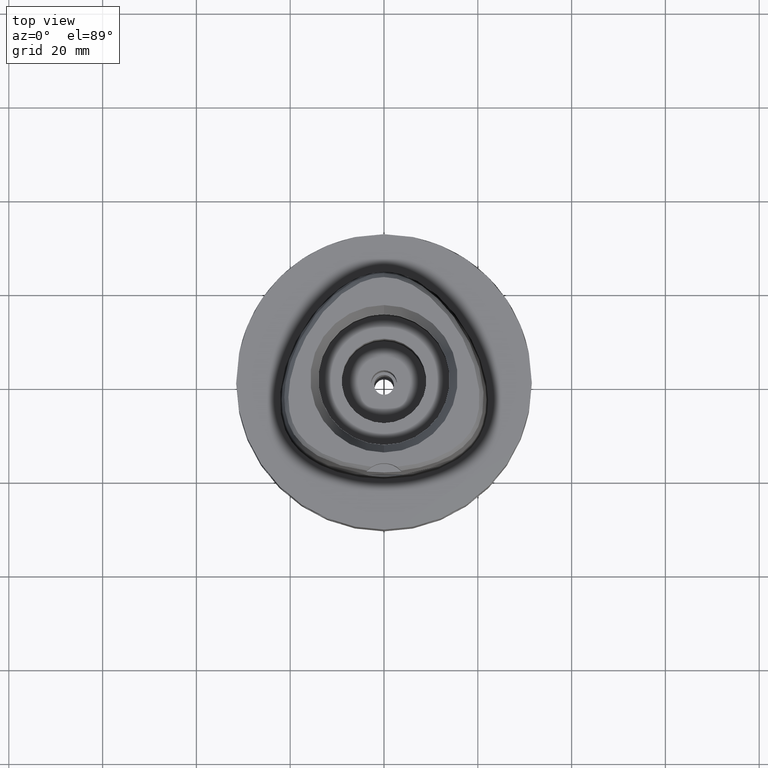
[diagram: clean part render]
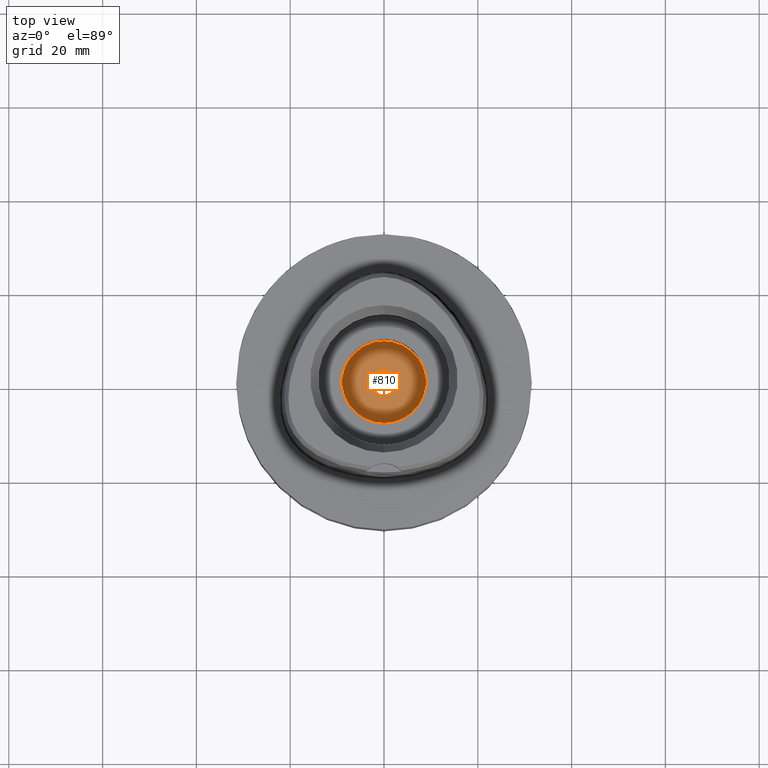
[diagram: same view with one face highlighted and labeled with its STEP entity id]
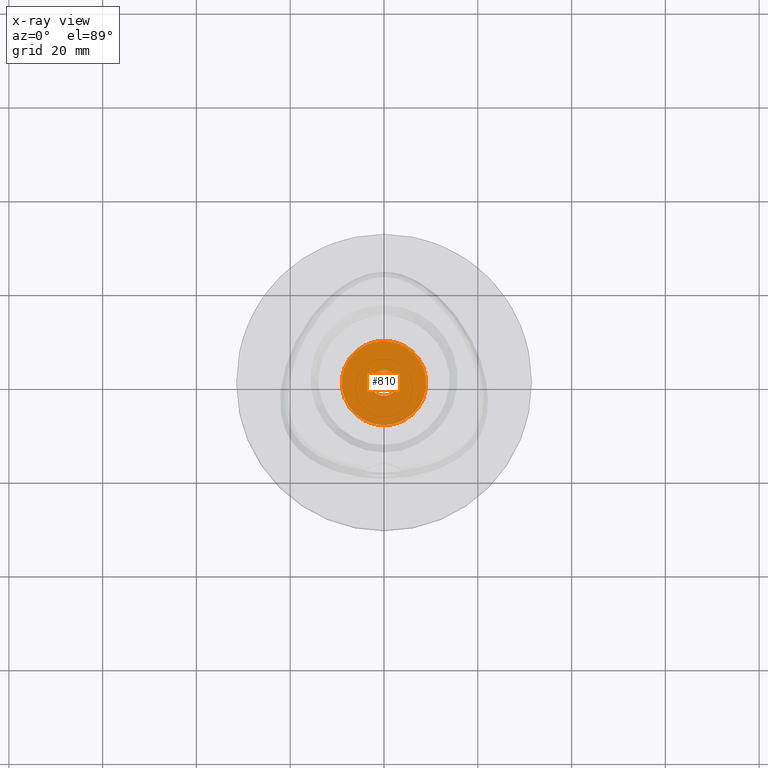
[diagram: x-ray of the same camera — body ghosted, the highlighted face saturated]
A machine part, top view. The second image highlights one B-rep face of the part: STEP entity #810.
The next image is the same camera in x-ray: the body ghosted, the highlighted face saturated — about 4% of this face is hidden behind the body in this view.
In plain terms, the highlighted planar face has unit normal (0, 0, -1).
Its self-contained STEP definition (entity closure, byte-faithful):
#47 = DIRECTION ( 'NONE',  ( 0.0000000000000000000, -1.000000000000000000, 0.0000000000000000000 ) ) ;
#59 = AXIS2_PLACEMENT_3D ( 'NONE', #697, #4869, #1166 ) ;
#114 = VERTEX_POINT ( 'NONE', #460 ) ;
#138 = CIRCLE ( 'NONE', #59, 2.750000000000000000 ) ;
#392 = DIRECTION ( 'NONE',  ( 0.0000000000000000000, -1.000000000000000000, 0.0000000000000000000 ) ) ;
#439 = DIRECTION ( 'NONE',  ( 0.0000000000000000000, -1.000000000000000000, 0.0000000000000000000 ) ) ;
#460 = CARTESIAN_POINT ( 'NONE',  ( 0.0000000000000000000, 9.000000000000000000, -16.00000000000000000 ) ) ;
#697 = CARTESIAN_POINT ( 'NONE',  ( 0.0000000000000000000, 1.277306611510999858E-14, -16.00000000000000000 ) ) ;
#810 = ADVANCED_FACE ( 'NONE', ( #3035, #3753 ), #3053, .F. ) ;
#928 = AXIS2_PLACEMENT_3D ( 'NONE', #1042, #1413, #2545 ) ;
#953 = VERTEX_POINT ( 'NONE', #2815 ) ;
#1020 = CIRCLE ( 'NONE', #1642, 2.750000000000000000 ) ;
#1042 = CARTESIAN_POINT ( 'NONE',  ( 0.0000000000000000000, 1.277306611510999858E-14, -16.00000000000000000 ) ) ;
#1157 = ORIENTED_EDGE ( 'NONE', *, *, #1477, .F. ) ;
#1166 = DIRECTION ( 'NONE',  ( 0.0000000000000000000, 1.000000000000000000, 0.0000000000000000000 ) ) ;
#1362 = EDGE_CURVE ( 'NONE', #114, #4292, #3464, .T. ) ;
#1413 = DIRECTION ( 'NONE',  ( 0.0000000000000000000, 0.0000000000000000000, -1.000000000000000000 ) ) ;
#1477 = EDGE_CURVE ( 'NONE', #4292, #114, #2746, .T. ) ;
#1642 = AXIS2_PLACEMENT_3D ( 'NONE', #3121, #2018, #439 ) ;
#2018 = DIRECTION ( 'NONE',  ( 0.0000000000000000000, 0.0000000000000000000, 1.000000000000000000 ) ) ;
#2110 = EDGE_CURVE ( 'NONE', #3914, #953, #138, .T. ) ;
#2115 = AXIS2_PLACEMENT_3D ( 'NONE', #3492, #3118, #392 ) ;
#2303 = DIRECTION ( 'NONE',  ( 0.0000000000000000000, 0.0000000000000000000, -1.000000000000000000 ) ) ;
#2545 = DIRECTION ( 'NONE',  ( 0.0000000000000000000, 1.000000000000000000, 0.0000000000000000000 ) ) ;
#2628 = CARTESIAN_POINT ( 'NONE',  ( 0.0000000000000000000, 1.028703311283999754E-14, -16.00000000000000000 ) ) ;
#2718 = ORIENTED_EDGE ( 'NONE', *, *, #2930, .F. ) ;
#2746 = CIRCLE ( 'NONE', #2115, 9.000000000000000000 ) ;
#2815 = CARTESIAN_POINT ( 'NONE',  ( 0.0000000000000000000, -2.750000000000000000, -16.00000000000000000 ) ) ;
#2930 = EDGE_CURVE ( 'NONE', #953, #3914, #1020, .T. ) ;
#3035 = FACE_OUTER_BOUND ( 'NONE', #4171, .T. ) ;
#3053 = PLANE ( 'NONE',  #4507 ) ;
#3118 = DIRECTION ( 'NONE',  ( 0.0000000000000000000, 0.0000000000000000000, -1.000000000000000000 ) ) ;
#3121 = CARTESIAN_POINT ( 'NONE',  ( 0.0000000000000000000, 1.277306611510999858E-14, -16.00000000000000000 ) ) ;
#3394 = ORIENTED_EDGE ( 'NONE', *, *, #2110, .F. ) ;
#3464 = CIRCLE ( 'NONE', #928, 9.000000000000000000 ) ;
#3492 = CARTESIAN_POINT ( 'NONE',  ( 0.0000000000000000000, 1.277306611510999858E-14, -16.00000000000000000 ) ) ;
#3569 = EDGE_LOOP ( 'NONE', ( #3394, #2718 ) ) ;
#3640 = ORIENTED_EDGE ( 'NONE', *, *, #1362, .F. ) ;
#3753 = FACE_BOUND ( 'NONE', #3569, .T. ) ;
#3838 = CARTESIAN_POINT ( 'NONE',  ( 0.0000000000000000000, 2.750000000000000000, -16.00000000000000000 ) ) ;
#3914 = VERTEX_POINT ( 'NONE', #3838 ) ;
#4171 = EDGE_LOOP ( 'NONE', ( #3640, #1157 ) ) ;
#4292 = VERTEX_POINT ( 'NONE', #4903 ) ;
#4507 = AXIS2_PLACEMENT_3D ( 'NONE', #2628, #2303, #47 ) ;
#4869 = DIRECTION ( 'NONE',  ( 0.0000000000000000000, 0.0000000000000000000, 1.000000000000000000 ) ) ;
#4903 = CARTESIAN_POINT ( 'NONE',  ( 0.0000000000000000000, -9.000000000000000000, -16.00000000000000000 ) ) ;